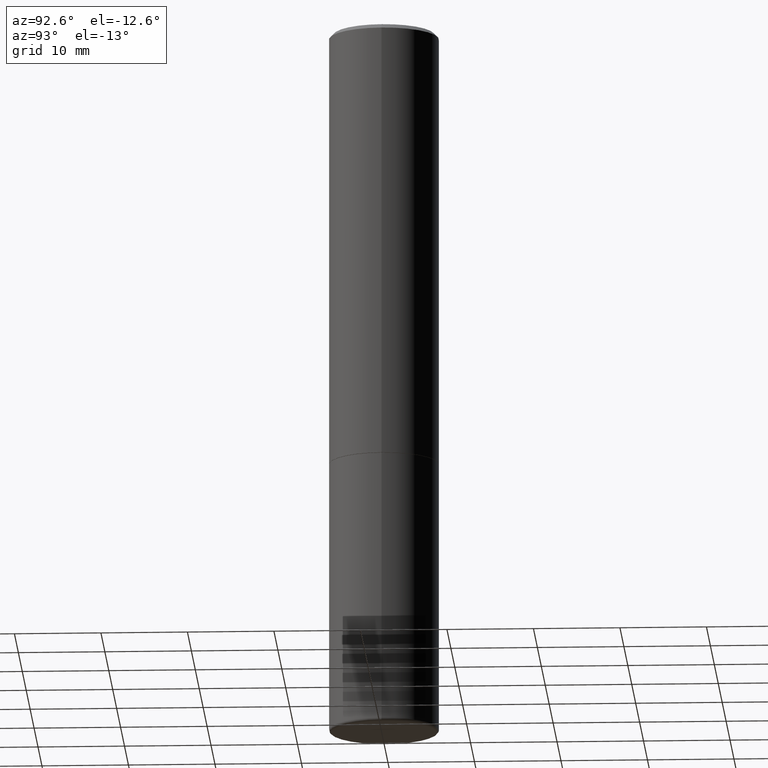
[diagram: clean part render]
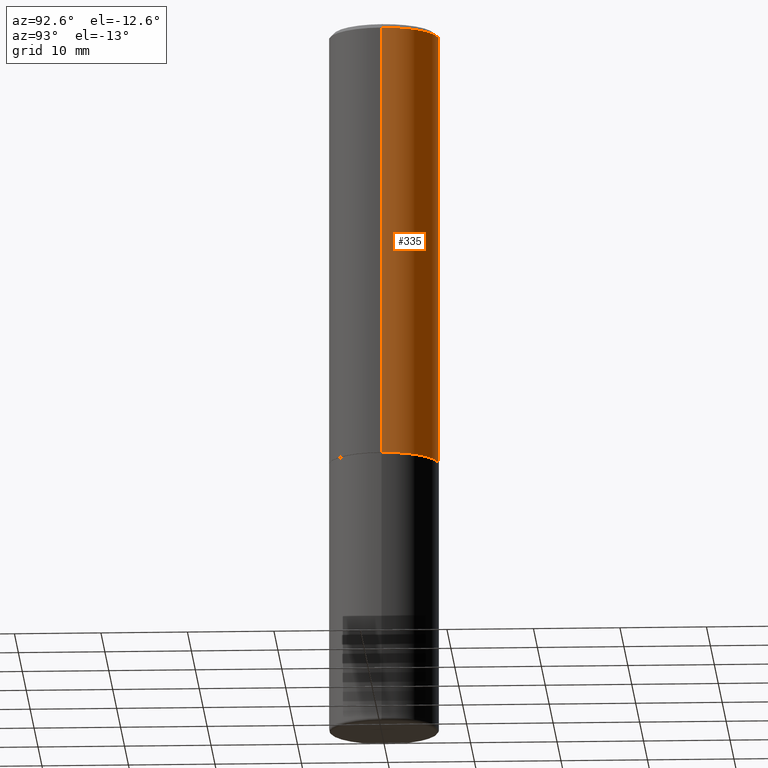
[diagram: same view with one face highlighted and labeled with its STEP entity id]
A machine part, auxiliary view. The second image highlights one B-rep face of the part: STEP entity #335.
In plain terms, the highlighted cylindrical surface (partial cylindrical patch) has radius 6.35 mm, axis along (-0, 0, 1).
Its self-contained STEP definition (entity closure, byte-faithful):
#2 = CARTESIAN_POINT ( 'NONE',  ( -0.2499999999999999722, 1.675911042644703182E-15, -0.02000000000000009409 ) ) ;
#6 = CIRCLE ( 'NONE', #128, 0.2499999999999999722 ) ;
#45 = DIRECTION ( 'NONE',  ( 1.000000000000000000, -6.982962677686268288E-15, 0.000000000000000000 ) ) ;
#64 = CARTESIAN_POINT ( 'NONE',  ( 4.890937612370296805E-31, -6.982962677686323656E-17, -0.02000000000000009409 ) ) ;
#70 = CARTESIAN_POINT ( 'NONE',  ( 0.2499999999999999722, -1.784954126219746189E-15, -0.02000000000000009409 ) ) ;
#71 = AXIS2_PLACEMENT_3D ( 'NONE', #239, #272, #406 ) ;
#92 = ORIENTED_EDGE ( 'NONE', *, *, #261, .F. ) ;
#95 = VECTOR ( 'NONE', #399, 39.37007874015748143 ) ;
#99 = VERTEX_POINT ( 'NONE', #2 ) ;
#102 = EDGE_LOOP ( 'NONE', ( #372, #276, #155, #92 ) ) ;
#109 = CYLINDRICAL_SURFACE ( 'NONE', #71, 0.2500000000000001110 ) ;
#111 = EDGE_CURVE ( 'NONE', #117, #99, #6, .T. ) ;
#117 = VERTEX_POINT ( 'NONE', #70 ) ;
#128 = AXIS2_PLACEMENT_3D ( 'NONE', #64, #251, #387 ) ;
#139 = DIRECTION ( 'NONE',  ( -2.445468806185136877E-29, 3.491481338843145188E-15, 1.000000000000000000 ) ) ;
#151 = FACE_OUTER_BOUND ( 'NONE', #102, .T. ) ;
#155 = ORIENTED_EDGE ( 'NONE', *, *, #111, .F. ) ;
#163 = AXIS2_PLACEMENT_3D ( 'NONE', #167, #299, #45 ) ;
#164 = VERTEX_POINT ( 'NONE', #371 ) ;
#167 = CARTESIAN_POINT ( 'NONE',  ( 4.888492143564088712E-29, -6.979471196347448158E-15, -1.999000000000000110 ) ) ;
#169 = LINE ( 'NONE', #329, #170 ) ;
#170 = VECTOR ( 'NONE', #139, 39.37007874015748143 ) ;
#202 = LINE ( 'NONE', #208, #95 ) ;
#208 = CARTESIAN_POINT ( 'NONE',  ( -0.2500000000000001110, 1.776356839400251254E-15, -1.229733772563727006E-29 ) ) ;
#211 = CARTESIAN_POINT ( 'NONE',  ( 0.2500000000000002220, -8.725211865769017202E-15, -1.999000000000000110 ) ) ;
#239 = CARTESIAN_POINT ( 'NONE',  ( 0.000000000000000000, 0.000000000000000000, 0.000000000000000000 ) ) ;
#241 = EDGE_CURVE ( 'NONE', #295, #164, #301, .T. ) ;
#251 = DIRECTION ( 'NONE',  ( -2.445468806185136597E-29, 3.491481338843145583E-15, 1.000000000000000000 ) ) ;
#261 = EDGE_CURVE ( 'NONE', #295, #117, #169, .T. ) ;
#272 = DIRECTION ( 'NONE',  ( -2.445468806185136597E-29, 3.491481338843145583E-15, 1.000000000000000000 ) ) ;
#276 = ORIENTED_EDGE ( 'NONE', *, *, #363, .T. ) ;
#295 = VERTEX_POINT ( 'NONE', #211 ) ;
#299 = DIRECTION ( 'NONE',  ( -2.445468806185136597E-29, 3.491481338843145583E-15, 1.000000000000000000 ) ) ;
#301 = CIRCLE ( 'NONE', #163, 0.2500000000000002220 ) ;
#329 = CARTESIAN_POINT ( 'NONE',  ( 0.2500000000000001110, -1.745740669421567467E-15, 1.219044193948984509E-29 ) ) ;
#335 = ADVANCED_FACE ( 'NONE', ( #151 ), #109, .T. ) ;
#363 = EDGE_CURVE ( 'NONE', #164, #99, #202, .T. ) ;
#371 = CARTESIAN_POINT ( 'NONE',  ( -0.2500000000000002220, -1.748293572161903489E-15, -1.999000000000000110 ) ) ;
#372 = ORIENTED_EDGE ( 'NONE', *, *, #241, .T. ) ;
#387 = DIRECTION ( 'NONE',  ( 1.000000000000000000, -6.982962677686266711E-15, 0.000000000000000000 ) ) ;
#399 = DIRECTION ( 'NONE',  ( -2.445468806185136877E-29, 3.491481338843145188E-15, 1.000000000000000000 ) ) ;
#406 = DIRECTION ( 'NONE',  ( 1.000000000000000000, -6.982962677686266711E-15, 4.876176775795935793E-29 ) ) ;